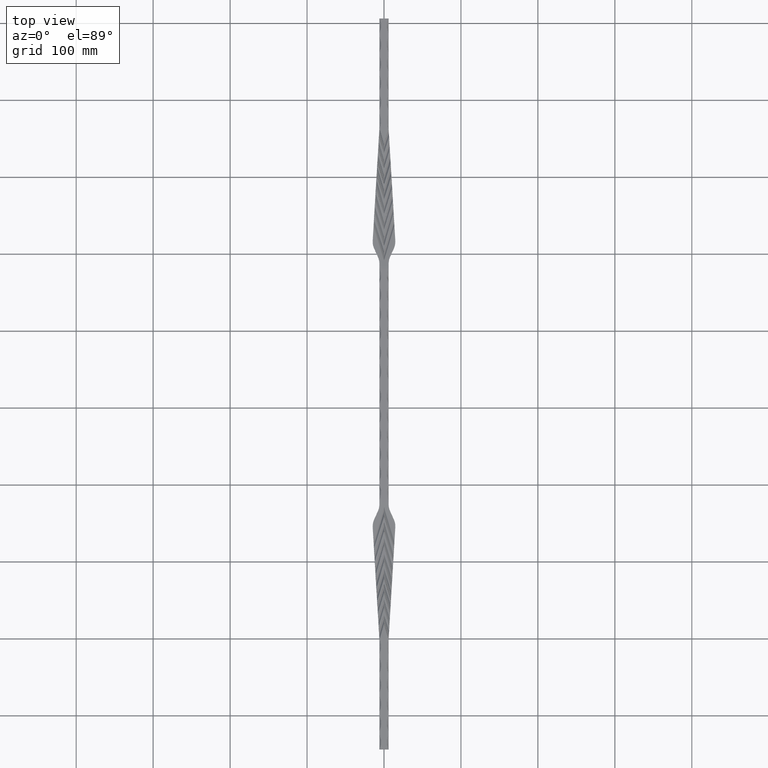
[diagram: clean part render]
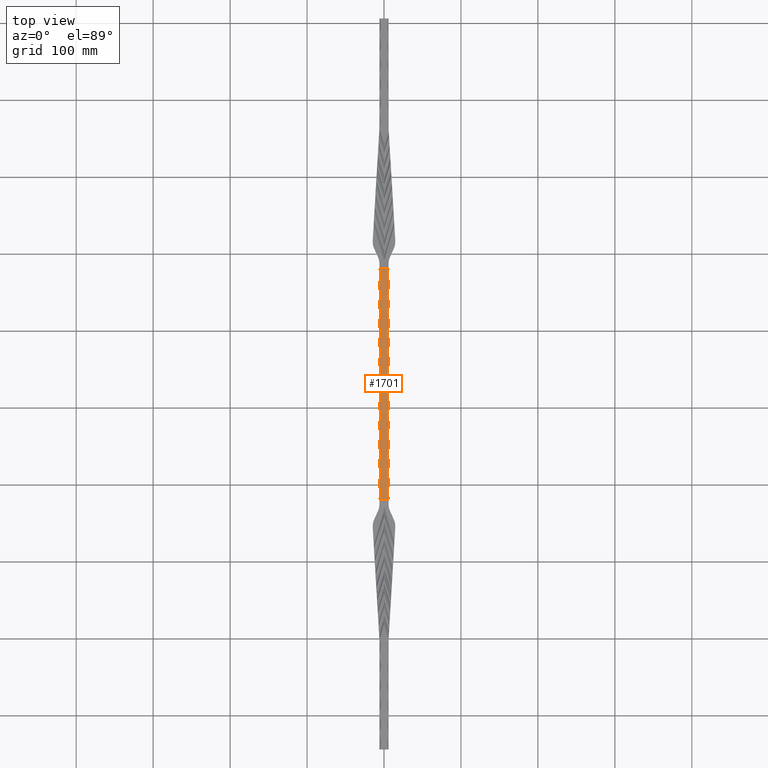
[diagram: same view with one face highlighted and labeled with its STEP entity id]
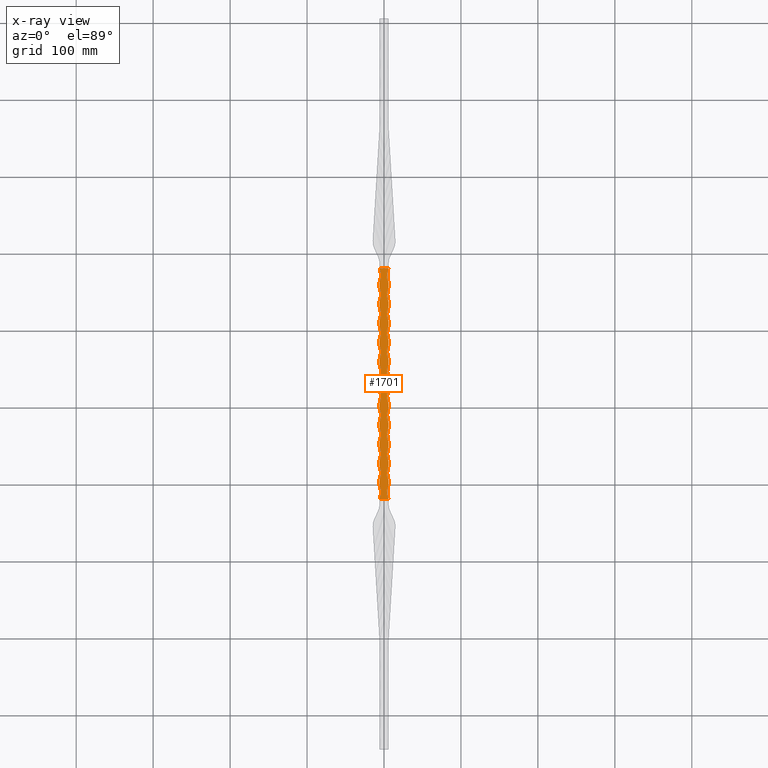
[diagram: x-ray of the same camera — body ghosted, the highlighted face saturated]
A machine part, top view. The second image highlights one B-rep face of the part: STEP entity #1701.
The next image is the same camera in x-ray: the body ghosted, the highlighted face saturated — about 0% of this face is hidden behind the body in this view.
In plain terms, the highlighted planar face has unit normal (0, 0, -1).
Its self-contained STEP definition (entity closure, byte-faithful):
#127 = AXIS2_PLACEMENT_3D ( 'NONE', #11779, #34590, #17482 ) ;
#283 = VECTOR ( 'NONE', #11474, 1000.000000000000000 ) ;
#288 = ORIENTED_EDGE ( 'NONE', *, *, #9248, .T. ) ;
#314 = CARTESIAN_POINT ( 'NONE',  ( -5.999999999999998224, 531.0399999999999636, 5.999999999999999112 ) ) ;
#405 = CIRCLE ( 'NONE', #16123, 26.00000000000000711 ) ;
#857 = EDGE_CURVE ( 'NONE', #15243, #13305, #6141, .T. ) ;
#914 = VERTEX_POINT ( 'NONE', #27845 ) ;
#1011 = AXIS2_PLACEMENT_3D ( 'NONE', #22577, #5639, #28446 ) ;
#1042 = EDGE_CURVE ( 'NONE', #34451, #2035, #17307, .T. ) ;
#1101 = CARTESIAN_POINT ( 'NONE',  ( -30.00000000000001066, 597.0799999999998136, 5.999999999999075406 ) ) ;
#1343 = VERTEX_POINT ( 'NONE', #11095 ) ;
#1373 = EDGE_CURVE ( 'NONE', #17051, #32781, #28448, .T. ) ;
#1446 = VECTOR ( 'NONE', #27926, 1000.000000000000000 ) ;
#1519 = CARTESIAN_POINT ( 'NONE',  ( -6.000000000000001776, 505.0000000000000000, 5.999999999998961719 ) ) ;
#1629 = CARTESIAN_POINT ( 'NONE',  ( 6.000000000000001776, 430.0000000000000568, 6.000000000000012434 ) ) ;
#1644 = CARTESIAN_POINT ( 'NONE',  ( 30.00000000000001066, 672.0799999999999272, 5.999999999999993783 ) ) ;
#1701 = ADVANCED_FACE ( 'NONE', ( #28414 ), #16379, .F. ) ;
#1756 = CARTESIAN_POINT ( 'NONE',  ( 6.000000000000001776, 531.0399999999999636, 5.999999999999999112 ) ) ;
#1794 = CIRCLE ( 'NONE', #17887, 26.00000000000000711 ) ;
#1898 = CARTESIAN_POINT ( 'NONE',  ( 6.000000000000001776, 400.0000000000000000, 5.999999999999984901 ) ) ;
#2035 = VERTEX_POINT ( 'NONE', #26339 ) ;
#2171 = DIRECTION ( 'NONE',  ( -1.000000000000000000, 0.000000000000000000, -0.000000000000000000 ) ) ;
#2593 = DIRECTION ( 'NONE',  ( -0.000000000000000000, -1.000000000000000000, -0.000000000000000000 ) ) ;
#2744 = EDGE_CURVE ( 'NONE', #13934, #16822, #5631, .T. ) ;
#3143 = EDGE_CURVE ( 'NONE', #35236, #26638, #32355, .T. ) ;
#3144 = ORIENTED_EDGE ( 'NONE', *, *, #21599, .F. ) ;
#3322 = EDGE_CURVE ( 'NONE', #20268, #15836, #31462, .T. ) ;
#3446 = CARTESIAN_POINT ( 'NONE',  ( 6.000000000000001776, 582.0799999999999272, 6.000000000000012434 ) ) ;
#3487 = VERTEX_POINT ( 'NONE', #4921 ) ;
#3631 = EDGE_CURVE ( 'NONE', #1343, #36102, #21590, .T. ) ;
#3835 = CARTESIAN_POINT ( 'NONE',  ( -6.000000000000001776, 405.0000000000000000, 5.999999999999170441 ) ) ;
#3921 = CARTESIAN_POINT ( 'NONE',  ( 30.00000000000001066, 572.0799999999999272, 5.999999999999988454 ) ) ;
#4384 = LINE ( 'NONE', #12487, #32024 ) ;
#4407 = CIRCLE ( 'NONE', #32277, 26.00000000000000711 ) ;
#4445 = EDGE_CURVE ( 'NONE', #32589, #14305, #6398, .T. ) ;
#4447 = CARTESIAN_POINT ( 'NONE',  ( 6.000000000000001776, 537.0799999999999272, 5.999999999999977796 ) ) ;
#4486 = DIRECTION ( 'NONE',  ( -0.000000000000000000, -0.000000000000000000, 1.000000000000000000 ) ) ;
#4552 = CARTESIAN_POINT ( 'NONE',  ( -6.000000000000001776, 525.0000000000025011, 6.000000000000012434 ) ) ;
#4588 = DIRECTION ( 'NONE',  ( -0.000000000000000000, -1.000000000000000000, -0.000000000000000000 ) ) ;
#4703 = EDGE_CURVE ( 'NONE', #11209, #914, #9049, .T. ) ;
#4817 = EDGE_CURVE ( 'NONE', #14189, #20515, #6820, .T. ) ;
#4829 = CARTESIAN_POINT ( 'NONE',  ( 6.000000000000001776, 531.0399999999999636, 5.999999999999999112 ) ) ;
#4867 = EDGE_CURVE ( 'NONE', #35474, #26964, #20222, .T. ) ;
#4921 = CARTESIAN_POINT ( 'NONE',  ( 5.593232469096428794, 681.0415678702127025, 5.999999999999993783 ) ) ;
#5055 = AXIS2_PLACEMENT_3D ( 'NONE', #10040, #24225, #24590 ) ;
#5106 = EDGE_CURVE ( 'NONE', #16822, #1343, #12184, .T. ) ;
#5148 = DIRECTION ( 'NONE',  ( -1.000000000000000000, 4.270088556250601108E-15, 0.000000000000000000 ) ) ;
#5311 = EDGE_CURVE ( 'NONE', #30675, #10342, #22426, .T. ) ;
#5359 = VERTEX_POINT ( 'NONE', #1519 ) ;
#5502 = DIRECTION ( 'NONE',  ( -1.000000000000000000, 0.000000000000000000, 0.000000000000000000 ) ) ;
#5631 = CIRCLE ( 'NONE', #28639, 26.00000000000000711 ) ;
#5639 = DIRECTION ( 'NONE',  ( -0.000000000000000000, -0.000000000000000000, 1.000000000000000000 ) ) ;
#5875 = ORIENTED_EDGE ( 'NONE', *, *, #11516, .T. ) ;
#5912 = LINE ( 'NONE', #6589, #35369 ) ;
#6101 = CARTESIAN_POINT ( 'NONE',  ( 6.000000000000001776, 531.0399999999999636, 5.999999999999999112 ) ) ;
#6141 = CIRCLE ( 'NONE', #12384, 26.00000000000000711 ) ;
#6150 = EDGE_CURVE ( 'NONE', #33956, #3487, #5912, .T. ) ;
#6333 = CARTESIAN_POINT ( 'NONE',  ( -6.000000000000001776, 582.0799999999999272, 5.999999999999014122 ) ) ;
#6367 = ORIENTED_EDGE ( 'NONE', *, *, #3322, .F. ) ;
#6398 = CIRCLE ( 'NONE', #30886, 26.00000000000000711 ) ;
#6417 = DIRECTION ( 'NONE',  ( -1.000000000000000000, 0.000000000000000000, 0.000000000000000000 ) ) ;
#6496 = LINE ( 'NONE', #27072, #35506 ) ;
#6554 = VECTOR ( 'NONE', #12156, 1000.000000000000000 ) ;
#6589 = CARTESIAN_POINT ( 'NONE',  ( -5.999999999999998224, 681.0415678702127025, 6.000000000000002665 ) ) ;
#6637 = CARTESIAN_POINT ( 'NONE',  ( 30.00000000000001066, 622.0799999999998136, 5.999999999999991118 ) ) ;
#6684 = DIRECTION ( 'NONE',  ( -0.000000000000000000, 1.000000000000000000, -0.000000000000000000 ) ) ;
#6798 = CARTESIAN_POINT ( 'NONE',  ( -6.000000000000001776, 557.0799999999999272, 5.999999999998961719 ) ) ;
#6820 = LINE ( 'NONE', #16213, #31810 ) ;
#6847 = DIRECTION ( 'NONE',  ( -1.000000000000000000, 0.000000000000000000, 0.000000000000000000 ) ) ;
#7088 = DIRECTION ( 'NONE',  ( -1.000000000000000000, 0.000000000000000000, 0.000000000000000000 ) ) ;
#7155 = LINE ( 'NONE', #30020, #21002 ) ;
#7374 = DIRECTION ( 'NONE',  ( -1.000000000000000000, -4.270088556250601108E-15, 0.000000000000000000 ) ) ;
#7448 = EDGE_CURVE ( 'NONE', #12773, #30675, #9429, .T. ) ;
#7522 = ORIENTED_EDGE ( 'NONE', *, *, #9205, .F. ) ;
#7545 = DIRECTION ( 'NONE',  ( -1.000000000000000000, -8.540177112501202215E-15, 0.000000000000000000 ) ) ;
#7681 = CARTESIAN_POINT ( 'NONE',  ( -6.000000000000001776, 607.0799999999998136, 5.999999999999065636 ) ) ;
#7707 = ORIENTED_EDGE ( 'NONE', *, *, #4867, .F. ) ;
#7803 = CARTESIAN_POINT ( 'NONE',  ( 6.000000000000001776, 531.0399999999999636, 5.999999999999999112 ) ) ;
#7860 = CARTESIAN_POINT ( 'NONE',  ( 30.00000000000001066, 440.0000000000000568, 5.999999999999991118 ) ) ;
#7894 = DIRECTION ( 'NONE',  ( -0.000000000000000000, -0.000000000000000000, 1.000000000000000000 ) ) ;
#8008 = AXIS2_PLACEMENT_3D ( 'NONE', #33252, #16152, #24772 ) ;
#8249 = AXIS2_PLACEMENT_3D ( 'NONE', #1101, #21180, #6847 ) ;
#8318 = EDGE_CURVE ( 'NONE', #35236, #13934, #9392, .T. ) ;
#8506 = VECTOR ( 'NONE', #19895, 1000.000000000000000 ) ;
#8517 = CARTESIAN_POINT ( 'NONE',  ( -6.000000000000001776, 657.0799999999999272, 5.999999999999170441 ) ) ;
#8622 = CARTESIAN_POINT ( 'NONE',  ( 6.000000000000001776, 531.0399999999999636, 5.999999999999999112 ) ) ;
#8683 = VECTOR ( 'NONE', #6684, 1000.000000000000000 ) ;
#8697 = ORIENTED_EDGE ( 'NONE', *, *, #17740, .T. ) ;
#8954 = DIRECTION ( 'NONE',  ( -0.000000000000000000, -1.000000000000000000, -0.000000000000000000 ) ) ;
#8970 = EDGE_CURVE ( 'NONE', #26638, #12773, #35216, .T. ) ;
#8982 = CARTESIAN_POINT ( 'NONE',  ( -5.999999999999998224, 531.0399999999999636, 5.999999999999999112 ) ) ;
#9049 = LINE ( 'NONE', #32951, #15306 ) ;
#9080 = CIRCLE ( 'NONE', #8008, 26.00000000000000711 ) ;
#9168 = DIRECTION ( 'NONE',  ( -0.000000000000000000, -0.000000000000000000, 1.000000000000000000 ) ) ;
#9174 = EDGE_CURVE ( 'NONE', #35474, #17051, #22856, .T. ) ;
#9201 = EDGE_CURVE ( 'NONE', #20268, #26964, #405, .T. ) ;
#9205 = EDGE_CURVE ( 'NONE', #13336, #19629, #4384, .T. ) ;
#9208 = EDGE_CURVE ( 'NONE', #16989, #23209, #21656, .T. ) ;
#9248 = EDGE_CURVE ( 'NONE', #11654, #23656, #31919, .T. ) ;
#9323 = ORIENTED_EDGE ( 'NONE', *, *, #4817, .T. ) ;
#9371 = CARTESIAN_POINT ( 'NONE',  ( 30.00000000000001066, 547.0799999999999272, 5.999999999999986677 ) ) ;
#9392 = LINE ( 'NONE', #7803, #12509 ) ;
#9414 = VERTEX_POINT ( 'NONE', #19549 ) ;
#9429 = CIRCLE ( 'NONE', #28830, 26.00000000000000711 ) ;
#9495 = DIRECTION ( 'NONE',  ( -0.000000000000000000, -1.000000000000000000, -0.000000000000000000 ) ) ;
#9584 = ORIENTED_EDGE ( 'NONE', *, *, #20324, .F. ) ;
#9612 = DIRECTION ( 'NONE',  ( 1.000000000000000000, 0.000000000000000000, 0.000000000000000000 ) ) ;
#9633 = CARTESIAN_POINT ( 'NONE',  ( -30.00000000000001066, 572.0799999999999272, 5.999999999999023892 ) ) ;
#9642 = CIRCLE ( 'NONE', #18678, 26.00000000000000711 ) ;
#9657 = ORIENTED_EDGE ( 'NONE', *, *, #8318, .F. ) ;
#9833 = DIRECTION ( 'NONE',  ( -0.000000000000000000, 1.000000000000000000, -0.000000000000000000 ) ) ;
#9853 = CARTESIAN_POINT ( 'NONE',  ( 6.000000000000001776, 450.0000000000000568, 5.999999999999982236 ) ) ;
#10040 = CARTESIAN_POINT ( 'NONE',  ( 30.00000000000001066, 490.0000000000000568, 5.999999999999988454 ) ) ;
#10342 = VERTEX_POINT ( 'NONE', #15871 ) ;
#10370 = ORIENTED_EDGE ( 'NONE', *, *, #30492, .F. ) ;
#10384 = CARTESIAN_POINT ( 'NONE',  ( -6.000000000000001776, 480.0000000000000568, 5.999999999999014122 ) ) ;
#10408 = VERTEX_POINT ( 'NONE', #10384 ) ;
#10836 = VECTOR ( 'NONE', #4588, 1000.000000000000000 ) ;
#10894 = ORIENTED_EDGE ( 'NONE', *, *, #11794, .T. ) ;
#11056 = CARTESIAN_POINT ( 'NONE',  ( -6.000000000000001776, 632.0799999999998136, 5.999999999999118039 ) ) ;
#11084 = EDGE_CURVE ( 'NONE', #10408, #14305, #27236, .T. ) ;
#11095 = CARTESIAN_POINT ( 'NONE',  ( 6.000000000000001776, 500.0000000000000000, 5.999999999999979572 ) ) ;
#11209 = VERTEX_POINT ( 'NONE', #3835 ) ;
#11245 = CARTESIAN_POINT ( 'NONE',  ( -5.593232469096428794, 381.0384321297871679, 5.999999999999231726 ) ) ;
#11247 = CARTESIAN_POINT ( 'NONE',  ( 6.000000000000001776, 607.0799999999998136, 6.000000000000012434 ) ) ;
#11474 = DIRECTION ( 'NONE',  ( -0.000000000000000000, -1.000000000000000000, -0.000000000000000000 ) ) ;
#11484 = LINE ( 'NONE', #34443, #25724 ) ;
#11504 = CARTESIAN_POINT ( 'NONE',  ( 6.000000000000001776, 475.0000000000000568, 5.999999999999980460 ) ) ;
#11516 = EDGE_CURVE ( 'NONE', #32055, #14189, #1794, .T. ) ;
#11654 = VERTEX_POINT ( 'NONE', #11056 ) ;
#11680 = AXIS2_PLACEMENT_3D ( 'NONE', #30727, #13646, #2171 ) ;
#11685 = CARTESIAN_POINT ( 'NONE',  ( -30.00000000000001066, 490.0000000000000568, 5.999999999999023892 ) ) ;
#11752 = CARTESIAN_POINT ( 'NONE',  ( -6.000000000000001776, 537.0799999999974261, 6.000000000000012434 ) ) ;
#11779 = CARTESIAN_POINT ( 'NONE',  ( -30.00000000000001066, 515.0000000000000000, 5.999999999998971489 ) ) ;
#11794 = EDGE_CURVE ( 'NONE', #14758, #12737, #15613, .T. ) ;
#11921 = DIRECTION ( 'NONE',  ( 0.000000000000000000, 0.000000000000000000, -1.000000000000000000 ) ) ;
#12001 = DIRECTION ( 'NONE',  ( -0.000000000000000000, -1.000000000000000000, -0.000000000000000000 ) ) ;
#12006 = DIRECTION ( 'NONE',  ( -0.000000000000000000, 1.000000000000000000, -0.000000000000000000 ) ) ;
#12156 = DIRECTION ( 'NONE',  ( -0.000000000000000000, -1.000000000000000000, -0.000000000000000000 ) ) ;
#12161 = ORIENTED_EDGE ( 'NONE', *, *, #9201, .T. ) ;
#12184 = LINE ( 'NONE', #16821, #14362 ) ;
#12198 = VECTOR ( 'NONE', #12001, 1000.000000000000000 ) ;
#12375 = DIRECTION ( 'NONE',  ( -1.000000000000000000, 4.270088556250601108E-15, 0.000000000000000000 ) ) ;
#12384 = AXIS2_PLACEMENT_3D ( 'NONE', #36704, #7894, #5148 ) ;
#12428 = ORIENTED_EDGE ( 'NONE', *, *, #15491, .T. ) ;
#12476 = ORIENTED_EDGE ( 'NONE', *, *, #34709, .F. ) ;
#12487 = CARTESIAN_POINT ( 'NONE',  ( -5.999999999999998224, 531.0399999999999636, 5.999999999999999112 ) ) ;
#12509 = VECTOR ( 'NONE', #19010, 1000.000000000000000 ) ;
#12588 = DIRECTION ( 'NONE',  ( -0.000000000000000000, 1.000000000000000000, -0.000000000000000000 ) ) ;
#12618 = ORIENTED_EDGE ( 'NONE', *, *, #4445, .F. ) ;
#12737 = VERTEX_POINT ( 'NONE', #35152 ) ;
#12773 = VERTEX_POINT ( 'NONE', #15788 ) ;
#12847 = VECTOR ( 'NONE', #12006, 1000.000000000000000 ) ;
#12875 = DIRECTION ( 'NONE',  ( -0.000000000000000000, 1.000000000000000000, -0.000000000000000000 ) ) ;
#12983 = DIRECTION ( 'NONE',  ( 0.000000000000000000, 0.000000000000000000, -1.000000000000000000 ) ) ;
#13134 = CARTESIAN_POINT ( 'NONE',  ( 30.00000000000001066, 597.0799999999998136, 5.999999999999989342 ) ) ;
#13150 = ORIENTED_EDGE ( 'NONE', *, *, #32161, .T. ) ;
#13305 = VERTEX_POINT ( 'NONE', #28588 ) ;
#13336 = VERTEX_POINT ( 'NONE', #8517 ) ;
#13604 = CARTESIAN_POINT ( 'NONE',  ( 6.000000000000001776, 505.0000000000000000, 6.000000000000012434 ) ) ;
#13646 = DIRECTION ( 'NONE',  ( 0.000000000000000000, 0.000000000000000000, -1.000000000000000000 ) ) ;
#13930 = CIRCLE ( 'NONE', #127, 26.00000000000000711 ) ;
#13934 = VERTEX_POINT ( 'NONE', #20814 ) ;
#13937 = LINE ( 'NONE', #8982, #12198 ) ;
#14189 = VERTEX_POINT ( 'NONE', #17401 ) ;
#14257 = AXIS2_PLACEMENT_3D ( 'NONE', #16942, #28048, #19812 ) ;
#14298 = CARTESIAN_POINT ( 'NONE',  ( -6.000000000000001776, 455.0000000000000000, 5.999999999999065636 ) ) ;
#14305 = VERTEX_POINT ( 'NONE', #18024 ) ;
#14362 = VECTOR ( 'NONE', #2593, 1000.000000000000000 ) ;
#14478 = ORIENTED_EDGE ( 'NONE', *, *, #17723, .T. ) ;
#14522 = DIRECTION ( 'NONE',  ( -1.000000000000000000, -4.270088556250601108E-15, 0.000000000000000000 ) ) ;
#14608 = VERTEX_POINT ( 'NONE', #1629 ) ;
#14753 = ORIENTED_EDGE ( 'NONE', *, *, #5311, .T. ) ;
#14758 = VERTEX_POINT ( 'NONE', #11245 ) ;
#14878 = CARTESIAN_POINT ( 'NONE',  ( -6.000000000000001776, 562.0799999999974261, 6.000000000000012434 ) ) ;
#15243 = VERTEX_POINT ( 'NONE', #20155 ) ;
#15293 = CARTESIAN_POINT ( 'NONE',  ( -5.999999999999998224, 531.0399999999999636, 5.999999999999999112 ) ) ;
#15306 = VECTOR ( 'NONE', #15612, 1000.000000000000000 ) ;
#15440 = EDGE_CURVE ( 'NONE', #19264, #12737, #9642, .T. ) ;
#15447 = EDGE_CURVE ( 'NONE', #16941, #32055, #6496, .T. ) ;
#15464 = DIRECTION ( 'NONE',  ( 0.000000000000000000, 0.000000000000000000, -1.000000000000000000 ) ) ;
#15491 = EDGE_CURVE ( 'NONE', #20515, #34451, #26995, .T. ) ;
#15612 = DIRECTION ( 'NONE',  ( -0.000000000000000000, -1.000000000000000000, -0.000000000000000000 ) ) ;
#15613 = LINE ( 'NONE', #31740, #8506 ) ;
#15721 = DIRECTION ( 'NONE',  ( -0.000000000000000000, -0.000000000000000000, 1.000000000000000000 ) ) ;
#15788 = CARTESIAN_POINT ( 'NONE',  ( 6.000000000000001776, 562.0799999999999272, 5.999999999999979572 ) ) ;
#15836 = VERTEX_POINT ( 'NONE', #21532 ) ;
#15871 = CARTESIAN_POINT ( 'NONE',  ( 6.000000000000001776, 587.0799999999998136, 5.999999999999980460 ) ) ;
#15883 = CIRCLE ( 'NONE', #1011, 26.00000000000000711 ) ;
#15927 = ORIENTED_EDGE ( 'NONE', *, *, #23981, .F. ) ;
#15964 = CARTESIAN_POINT ( 'NONE',  ( 6.000000000000001776, 480.0000000000000000, 6.000000000000012434 ) ) ;
#16063 = CARTESIAN_POINT ( 'NONE',  ( -6.000000000000001776, 662.0799999999979946, 6.000000000000012434 ) ) ;
#16123 = AXIS2_PLACEMENT_3D ( 'NONE', #9633, #15464, #12375 ) ;
#16152 = DIRECTION ( 'NONE',  ( -0.000000000000000000, -0.000000000000000000, 1.000000000000000000 ) ) ;
#16196 = CARTESIAN_POINT ( 'NONE',  ( 6.000000000000001776, 612.0799999999998136, 5.999999999999982236 ) ) ;
#16213 = CARTESIAN_POINT ( 'NONE',  ( 6.000000000000001776, 531.0399999999999636, 5.999999999999999112 ) ) ;
#16379 = PLANE ( 'NONE',  #11680 ) ;
#16598 = CARTESIAN_POINT ( 'NONE',  ( -6.000000000000001776, 500.0000000000024443, 6.000000000000012434 ) ) ;
#16715 = CARTESIAN_POINT ( 'NONE',  ( 30.00000000000001066, 515.0000000000000000, 5.999999999999986677 ) ) ;
#16740 = LINE ( 'NONE', #33514, #21201 ) ;
#16821 = CARTESIAN_POINT ( 'NONE',  ( 6.000000000000001776, 531.0399999999999636, 5.999999999999999112 ) ) ;
#16822 = VERTEX_POINT ( 'NONE', #13604 ) ;
#16854 = AXIS2_PLACEMENT_3D ( 'NONE', #32666, #32433, #7088 ) ;
#16941 = VERTEX_POINT ( 'NONE', #11247 ) ;
#16942 = CARTESIAN_POINT ( 'NONE',  ( -30.00000000000001066, 415.0000000000000568, 5.999999999999179323 ) ) ;
#16989 = VERTEX_POINT ( 'NONE', #11504 ) ;
#17051 = VERTEX_POINT ( 'NONE', #11752 ) ;
#17182 = AXIS2_PLACEMENT_3D ( 'NONE', #11685, #34363, #14522 ) ;
#17188 = EDGE_CURVE ( 'NONE', #14608, #9414, #34494, .T. ) ;
#17238 = DIRECTION ( 'NONE',  ( -0.000000000000000000, 1.000000000000000000, -0.000000000000000000 ) ) ;
#17307 = LINE ( 'NONE', #18095, #12847 ) ;
#17401 = CARTESIAN_POINT ( 'NONE',  ( 6.000000000000001776, 632.0799999999998136, 6.000000000000012434 ) ) ;
#17407 = VERTEX_POINT ( 'NONE', #29013 ) ;
#17447 = ORIENTED_EDGE ( 'NONE', *, *, #9208, .F. ) ;
#17448 = CARTESIAN_POINT ( 'NONE',  ( 30.00000000000001066, 647.0799999999999272, 5.999999999999992006 ) ) ;
#17482 = DIRECTION ( 'NONE',  ( -1.000000000000000000, -4.270088556250601108E-15, 0.000000000000000000 ) ) ;
#17723 = EDGE_CURVE ( 'NONE', #2035, #3487, #23728, .T. ) ;
#17740 = EDGE_CURVE ( 'NONE', #10342, #16941, #21505, .T. ) ;
#17804 = VERTEX_POINT ( 'NONE', #16598 ) ;
#17887 = AXIS2_PLACEMENT_3D ( 'NONE', #6637, #11921, #34716 ) ;
#17930 = LINE ( 'NONE', #32763, #34444 ) ;
#18024 = CARTESIAN_POINT ( 'NONE',  ( -6.000000000000001776, 475.0000000000022737, 6.000000000000012434 ) ) ;
#18037 = EDGE_CURVE ( 'NONE', #13336, #17407, #22400, .T. ) ;
#18095 = CARTESIAN_POINT ( 'NONE',  ( 6.000000000000001776, 531.0399999999999636, 5.999999999999999112 ) ) ;
#18266 = EDGE_CURVE ( 'NONE', #36102, #16989, #27296, .T. ) ;
#18391 = ORIENTED_EDGE ( 'NONE', *, *, #1042, .T. ) ;
#18602 = LINE ( 'NONE', #8622, #23499 ) ;
#18678 = AXIS2_PLACEMENT_3D ( 'NONE', #32827, #15721, #31793 ) ;
#18686 = DIRECTION ( 'NONE',  ( -1.000000000000000000, 0.000000000000000000, 0.000000000000000000 ) ) ;
#18846 = DIRECTION ( 'NONE',  ( 0.000000000000000000, 0.000000000000000000, -1.000000000000000000 ) ) ;
#18975 = VERTEX_POINT ( 'NONE', #29128 ) ;
#19010 = DIRECTION ( 'NONE',  ( -0.000000000000000000, -1.000000000000000000, -0.000000000000000000 ) ) ;
#19043 = CARTESIAN_POINT ( 'NONE',  ( -30.00000000000001066, 622.0799999999998136, 5.999999999999127809 ) ) ;
#19159 = AXIS2_PLACEMENT_3D ( 'NONE', #17448, #28443, #28689 ) ;
#19230 = ORIENTED_EDGE ( 'NONE', *, *, #28436, .F. ) ;
#19264 = VERTEX_POINT ( 'NONE', #1898 ) ;
#19368 = CARTESIAN_POINT ( 'NONE',  ( -30.00000000000001066, 672.0799999999999272, 5.999999999999231726 ) ) ;
#19549 = CARTESIAN_POINT ( 'NONE',  ( 6.000000000000001776, 425.0000000000000568, 5.999999999999983125 ) ) ;
#19629 = VERTEX_POINT ( 'NONE', #16063 ) ;
#19812 = DIRECTION ( 'NONE',  ( -1.000000000000000000, -2.135044278125300554E-15, 0.000000000000000000 ) ) ;
#19895 = DIRECTION ( 'NONE',  ( 1.000000000000000000, -0.000000000000000000, 0.000000000000000000 ) ) ;
#20123 = EDGE_CURVE ( 'NONE', #11209, #18975, #29990, .T. ) ;
#20153 = VECTOR ( 'NONE', #8954, 1000.000000000000000 ) ;
#20155 = CARTESIAN_POINT ( 'NONE',  ( -6.000000000000001776, 430.0000000000000568, 5.999999999999118039 ) ) ;
#20222 = LINE ( 'NONE', #27672, #1446 ) ;
#20268 = VERTEX_POINT ( 'NONE', #6333 ) ;
#20276 = ORIENTED_EDGE ( 'NONE', *, *, #2744, .F. ) ;
#20324 = EDGE_CURVE ( 'NONE', #11654, #17407, #17930, .T. ) ;
#20515 = VERTEX_POINT ( 'NONE', #31121 ) ;
#20563 = EDGE_CURVE ( 'NONE', #10408, #17804, #36226, .T. ) ;
#20708 = ORIENTED_EDGE ( 'NONE', *, *, #4703, .T. ) ;
#20814 = CARTESIAN_POINT ( 'NONE',  ( 6.000000000000001776, 525.0000000000000000, 5.999999999999977796 ) ) ;
#20938 = DIRECTION ( 'NONE',  ( -1.000000000000000000, 4.270088556250601108E-15, 0.000000000000000000 ) ) ;
#21002 = VECTOR ( 'NONE', #12588, 1000.000000000000000 ) ;
#21105 = ORIENTED_EDGE ( 'NONE', *, *, #28768, .T. ) ;
#21180 = DIRECTION ( 'NONE',  ( 0.000000000000000000, 0.000000000000000000, -1.000000000000000000 ) ) ;
#21197 = ORIENTED_EDGE ( 'NONE', *, *, #18266, .F. ) ;
#21201 = VECTOR ( 'NONE', #25383, 1000.000000000000000 ) ;
#21223 = EDGE_LOOP ( 'NONE', ( #19230, #10894, #30662, #15927, #10370, #27677, #12476, #22163, #17447, #21197, #22820, #35507, #20276, #9657, #22000, #36645, #21288, #14753, #8697, #28586, #5875, #9323, #12428, #18391, #14478, #30440, #29790, #7522, #30168, #9584, #288, #3144, #34192, #6367, #12161, #7707, #35676, #24056, #29290, #21105, #23807, #33564, #12618, #33986, #34388, #13150, #36948, #20708 ) ) ;
#21280 = CARTESIAN_POINT ( 'NONE',  ( 6.000000000000001776, 455.0000000000000000, 6.000000000000012434 ) ) ;
#21288 = ORIENTED_EDGE ( 'NONE', *, *, #7448, .T. ) ;
#21505 = CIRCLE ( 'NONE', #23065, 26.00000000000000711 ) ;
#21532 = CARTESIAN_POINT ( 'NONE',  ( -6.000000000000001776, 587.0799999999976535, 6.000000000000012434 ) ) ;
#21590 = CIRCLE ( 'NONE', #5055, 26.00000000000000711 ) ;
#21599 = EDGE_CURVE ( 'NONE', #30507, #23656, #7155, .T. ) ;
#21656 = CIRCLE ( 'NONE', #16854, 26.00000000000000711 ) ;
#21790 = DIRECTION ( 'NONE',  ( 0.000000000000000000, 0.000000000000000000, -1.000000000000000000 ) ) ;
#22000 = ORIENTED_EDGE ( 'NONE', *, *, #3143, .T. ) ;
#22098 = CARTESIAN_POINT ( 'NONE',  ( 6.000000000000001776, 657.0799999999999272, 6.000000000000012434 ) ) ;
#22163 = ORIENTED_EDGE ( 'NONE', *, *, #24207, .F. ) ;
#22267 = CARTESIAN_POINT ( 'NONE',  ( -5.593232469096428794, 681.0415678702127025, 5.999999999999231726 ) ) ;
#22315 = DIRECTION ( 'NONE',  ( -0.000000000000000000, -0.000000000000000000, 1.000000000000000000 ) ) ;
#22400 = CIRCLE ( 'NONE', #26877, 26.00000000000000711 ) ;
#22426 = LINE ( 'NONE', #1756, #22849 ) ;
#22577 = CARTESIAN_POINT ( 'NONE',  ( -30.00000000000001066, 390.0000000000000000, 5.999999999999231726 ) ) ;
#22820 = ORIENTED_EDGE ( 'NONE', *, *, #3631, .F. ) ;
#22849 = VECTOR ( 'NONE', #24215, 1000.000000000000000 ) ;
#22856 = CIRCLE ( 'NONE', #32641, 26.00000000000000711 ) ;
#23065 = AXIS2_PLACEMENT_3D ( 'NONE', #13134, #18846, #33206 ) ;
#23209 = VERTEX_POINT ( 'NONE', #21280 ) ;
#23251 = CIRCLE ( 'NONE', #33412, 26.00000000000000711 ) ;
#23478 = CARTESIAN_POINT ( 'NONE',  ( -30.00000000000001066, 465.0000000000000000, 5.999999999999075406 ) ) ;
#23499 = VECTOR ( 'NONE', #31204, 1000.000000000000000 ) ;
#23656 = VERTEX_POINT ( 'NONE', #29747 ) ;
#23728 = CIRCLE ( 'NONE', #36465, 26.00000000000000711 ) ;
#23807 = ORIENTED_EDGE ( 'NONE', *, *, #20563, .F. ) ;
#23981 = EDGE_CURVE ( 'NONE', #32656, #19264, #31107, .T. ) ;
#24056 = ORIENTED_EDGE ( 'NONE', *, *, #1373, .T. ) ;
#24207 = EDGE_CURVE ( 'NONE', #23209, #33769, #18602, .T. ) ;
#24215 = DIRECTION ( 'NONE',  ( -0.000000000000000000, 1.000000000000000000, -0.000000000000000000 ) ) ;
#24225 = DIRECTION ( 'NONE',  ( -0.000000000000000000, -0.000000000000000000, 1.000000000000000000 ) ) ;
#24326 = EDGE_CURVE ( 'NONE', #32589, #13305, #11484, .T. ) ;
#24590 = DIRECTION ( 'NONE',  ( -1.000000000000000000, 0.000000000000000000, 0.000000000000000000 ) ) ;
#24689 = CARTESIAN_POINT ( 'NONE',  ( -30.00000000000001066, 647.0799999999999272, 5.999999999999179323 ) ) ;
#24772 = DIRECTION ( 'NONE',  ( -1.000000000000000000, 0.000000000000000000, 0.000000000000000000 ) ) ;
#25383 = DIRECTION ( 'NONE',  ( -0.000000000000000000, -1.000000000000000000, -0.000000000000000000 ) ) ;
#25724 = VECTOR ( 'NONE', #9495, 1000.000000000000000 ) ;
#25893 = CARTESIAN_POINT ( 'NONE',  ( -5.999999999999998224, 531.0399999999999636, 5.999999999999999112 ) ) ;
#26185 = AXIS2_PLACEMENT_3D ( 'NONE', #19043, #21790, #30039 ) ;
#26339 = CARTESIAN_POINT ( 'NONE',  ( 6.000000000000001776, 662.0799999999999272, 5.999999999999984901 ) ) ;
#26638 = VERTEX_POINT ( 'NONE', #27605 ) ;
#26877 = AXIS2_PLACEMENT_3D ( 'NONE', #24689, #12983, #7374 ) ;
#26964 = VERTEX_POINT ( 'NONE', #14878 ) ;
#26995 = CIRCLE ( 'NONE', #19159, 26.00000000000000711 ) ;
#27000 = DIRECTION ( 'NONE',  ( -0.000000000000000000, -1.000000000000000000, -0.000000000000000000 ) ) ;
#27072 = CARTESIAN_POINT ( 'NONE',  ( 6.000000000000001776, 531.0399999999999636, 5.999999999999999112 ) ) ;
#27236 = LINE ( 'NONE', #15293, #33040 ) ;
#27296 = LINE ( 'NONE', #6101, #20153 ) ;
#27505 = AXIS2_PLACEMENT_3D ( 'NONE', #9371, #29321, #32437 ) ;
#27605 = CARTESIAN_POINT ( 'NONE',  ( 6.000000000000001776, 557.0799999999999272, 6.000000000000012434 ) ) ;
#27613 = VECTOR ( 'NONE', #27709, 1000.000000000000000 ) ;
#27672 = CARTESIAN_POINT ( 'NONE',  ( -5.999999999999998224, 531.0399999999999636, 5.999999999999999112 ) ) ;
#27677 = ORIENTED_EDGE ( 'NONE', *, *, #17188, .F. ) ;
#27709 = DIRECTION ( 'NONE',  ( -0.000000000000000000, 1.000000000000000000, -0.000000000000000000 ) ) ;
#27845 = CARTESIAN_POINT ( 'NONE',  ( -6.000000000000001776, 400.0000000000018758, 6.000000000000012434 ) ) ;
#27926 = DIRECTION ( 'NONE',  ( -0.000000000000000000, 1.000000000000000000, -0.000000000000000000 ) ) ;
#28048 = DIRECTION ( 'NONE',  ( -0.000000000000000000, -0.000000000000000000, 1.000000000000000000 ) ) ;
#28414 = FACE_OUTER_BOUND ( 'NONE', #21223, .T. ) ;
#28436 = EDGE_CURVE ( 'NONE', #14758, #914, #15883, .T. ) ;
#28443 = DIRECTION ( 'NONE',  ( 0.000000000000000000, 0.000000000000000000, -1.000000000000000000 ) ) ;
#28446 = DIRECTION ( 'NONE',  ( -1.000000000000000000, 0.000000000000000000, 0.000000000000000000 ) ) ;
#28448 = LINE ( 'NONE', #25893, #283 ) ;
#28586 = ORIENTED_EDGE ( 'NONE', *, *, #15447, .T. ) ;
#28588 = CARTESIAN_POINT ( 'NONE',  ( -6.000000000000001776, 450.0000000000021600, 6.000000000000012434 ) ) ;
#28639 = AXIS2_PLACEMENT_3D ( 'NONE', #16715, #22315, #5502 ) ;
#28689 = DIRECTION ( 'NONE',  ( -1.000000000000000000, 0.000000000000000000, 0.000000000000000000 ) ) ;
#28768 = EDGE_CURVE ( 'NONE', #5359, #17804, #16740, .T. ) ;
#28830 = AXIS2_PLACEMENT_3D ( 'NONE', #3921, #29358, #29481 ) ;
#29013 = CARTESIAN_POINT ( 'NONE',  ( -6.000000000000001776, 637.0799999999978809, 6.000000000000012434 ) ) ;
#29128 = CARTESIAN_POINT ( 'NONE',  ( -6.000000000000001776, 425.0000000000019895, 6.000000000000012434 ) ) ;
#29228 = CARTESIAN_POINT ( 'NONE',  ( 6.000000000000001776, 531.0399999999999636, 5.999999999999999112 ) ) ;
#29290 = ORIENTED_EDGE ( 'NONE', *, *, #31060, .F. ) ;
#29321 = DIRECTION ( 'NONE',  ( 0.000000000000000000, 0.000000000000000000, -1.000000000000000000 ) ) ;
#29358 = DIRECTION ( 'NONE',  ( 0.000000000000000000, 0.000000000000000000, -1.000000000000000000 ) ) ;
#29402 = CARTESIAN_POINT ( 'NONE',  ( 6.000000000000001776, 405.0000000000000000, 6.000000000000012434 ) ) ;
#29481 = DIRECTION ( 'NONE',  ( -1.000000000000000000, 0.000000000000000000, 0.000000000000000000 ) ) ;
#29747 = CARTESIAN_POINT ( 'NONE',  ( -6.000000000000001776, 612.0799999999977672, 6.000000000000012434 ) ) ;
#29790 = ORIENTED_EDGE ( 'NONE', *, *, #32917, .T. ) ;
#29857 = EDGE_CURVE ( 'NONE', #30507, #15836, #31887, .T. ) ;
#29990 = CIRCLE ( 'NONE', #14257, 26.00000000000000711 ) ;
#30020 = CARTESIAN_POINT ( 'NONE',  ( -5.999999999999998224, 531.0399999999999636, 5.999999999999999112 ) ) ;
#30039 = DIRECTION ( 'NONE',  ( -1.000000000000000000, -4.270088556250601108E-15, 0.000000000000000000 ) ) ;
#30168 = ORIENTED_EDGE ( 'NONE', *, *, #18037, .T. ) ;
#30324 = DIRECTION ( 'NONE',  ( -1.000000000000000000, 0.000000000000000000, 0.000000000000000000 ) ) ;
#30440 = ORIENTED_EDGE ( 'NONE', *, *, #6150, .F. ) ;
#30492 = EDGE_CURVE ( 'NONE', #9414, #32656, #9080, .T. ) ;
#30507 = VERTEX_POINT ( 'NONE', #7681 ) ;
#30662 = ORIENTED_EDGE ( 'NONE', *, *, #15440, .F. ) ;
#30675 = VERTEX_POINT ( 'NONE', #3446 ) ;
#30727 = CARTESIAN_POINT ( 'NONE',  ( -5.999999999999998224, 200.0000000000000000, 6.000000000000002665 ) ) ;
#30886 = AXIS2_PLACEMENT_3D ( 'NONE', #23478, #9168, #6417 ) ;
#31060 = EDGE_CURVE ( 'NONE', #5359, #32781, #13930, .T. ) ;
#31107 = LINE ( 'NONE', #29228, #6554 ) ;
#31121 = CARTESIAN_POINT ( 'NONE',  ( 6.000000000000001776, 637.0799999999998136, 5.999999999999983125 ) ) ;
#31204 = DIRECTION ( 'NONE',  ( -0.000000000000000000, -1.000000000000000000, -0.000000000000000000 ) ) ;
#31462 = LINE ( 'NONE', #314, #8683 ) ;
#31740 = CARTESIAN_POINT ( 'NONE',  ( -5.999999999999998224, 381.0384321297871679, 6.000000000000002665 ) ) ;
#31793 = DIRECTION ( 'NONE',  ( -1.000000000000000000, 0.000000000000000000, 0.000000000000000000 ) ) ;
#31810 = VECTOR ( 'NONE', #17238, 1000.000000000000000 ) ;
#31887 = CIRCLE ( 'NONE', #8249, 26.00000000000000711 ) ;
#31919 = CIRCLE ( 'NONE', #26185, 26.00000000000000711 ) ;
#32024 = VECTOR ( 'NONE', #35070, 1000.000000000000000 ) ;
#32055 = VERTEX_POINT ( 'NONE', #16196 ) ;
#32161 = EDGE_CURVE ( 'NONE', #15243, #18975, #13937, .T. ) ;
#32277 = AXIS2_PLACEMENT_3D ( 'NONE', #7860, #4486, #18686 ) ;
#32311 = DIRECTION ( 'NONE',  ( 0.000000000000000000, 0.000000000000000000, -1.000000000000000000 ) ) ;
#32355 = CIRCLE ( 'NONE', #27505, 26.00000000000000711 ) ;
#32433 = DIRECTION ( 'NONE',  ( -0.000000000000000000, -0.000000000000000000, 1.000000000000000000 ) ) ;
#32437 = DIRECTION ( 'NONE',  ( -1.000000000000000000, 0.000000000000000000, 0.000000000000000000 ) ) ;
#32589 = VERTEX_POINT ( 'NONE', #14298 ) ;
#32641 = AXIS2_PLACEMENT_3D ( 'NONE', #35425, #32311, #20938 ) ;
#32656 = VERTEX_POINT ( 'NONE', #29402 ) ;
#32666 = CARTESIAN_POINT ( 'NONE',  ( 30.00000000000001066, 465.0000000000000000, 5.999999999999989342 ) ) ;
#32763 = CARTESIAN_POINT ( 'NONE',  ( -5.999999999999998224, 531.0399999999999636, 5.999999999999999112 ) ) ;
#32781 = VERTEX_POINT ( 'NONE', #4552 ) ;
#32827 = CARTESIAN_POINT ( 'NONE',  ( 30.00000000000001066, 390.0000000000000000, 5.999999999999993783 ) ) ;
#32917 = EDGE_CURVE ( 'NONE', #33956, #19629, #23251, .T. ) ;
#32951 = CARTESIAN_POINT ( 'NONE',  ( -5.999999999999998224, 531.0399999999999636, 5.999999999999999112 ) ) ;
#33040 = VECTOR ( 'NONE', #27000, 1000.000000000000000 ) ;
#33078 = DIRECTION ( 'NONE',  ( 0.000000000000000000, 0.000000000000000000, -1.000000000000000000 ) ) ;
#33206 = DIRECTION ( 'NONE',  ( -1.000000000000000000, 0.000000000000000000, 0.000000000000000000 ) ) ;
#33252 = CARTESIAN_POINT ( 'NONE',  ( 30.00000000000001066, 415.0000000000000568, 5.999999999999992006 ) ) ;
#33412 = AXIS2_PLACEMENT_3D ( 'NONE', #19368, #36359, #7545 ) ;
#33514 = CARTESIAN_POINT ( 'NONE',  ( -5.999999999999998224, 531.0399999999999636, 5.999999999999999112 ) ) ;
#33564 = ORIENTED_EDGE ( 'NONE', *, *, #11084, .T. ) ;
#33575 = CARTESIAN_POINT ( 'NONE',  ( 6.000000000000001776, 531.0399999999999636, 5.999999999999999112 ) ) ;
#33769 = VERTEX_POINT ( 'NONE', #9853 ) ;
#33956 = VERTEX_POINT ( 'NONE', #22267 ) ;
#33986 = ORIENTED_EDGE ( 'NONE', *, *, #24326, .T. ) ;
#34192 = ORIENTED_EDGE ( 'NONE', *, *, #29857, .T. ) ;
#34363 = DIRECTION ( 'NONE',  ( -0.000000000000000000, -0.000000000000000000, 1.000000000000000000 ) ) ;
#34388 = ORIENTED_EDGE ( 'NONE', *, *, #857, .F. ) ;
#34443 = CARTESIAN_POINT ( 'NONE',  ( -5.999999999999998224, 531.0399999999999636, 5.999999999999999112 ) ) ;
#34444 = VECTOR ( 'NONE', #9833, 1000.000000000000000 ) ;
#34451 = VERTEX_POINT ( 'NONE', #22098 ) ;
#34494 = LINE ( 'NONE', #4829, #10836 ) ;
#34590 = DIRECTION ( 'NONE',  ( -0.000000000000000000, -0.000000000000000000, 1.000000000000000000 ) ) ;
#34709 = EDGE_CURVE ( 'NONE', #33769, #14608, #4407, .T. ) ;
#34716 = DIRECTION ( 'NONE',  ( -1.000000000000000000, 0.000000000000000000, 0.000000000000000000 ) ) ;
#35070 = DIRECTION ( 'NONE',  ( -0.000000000000000000, 1.000000000000000000, -0.000000000000000000 ) ) ;
#35152 = CARTESIAN_POINT ( 'NONE',  ( 5.593232469096428794, 381.0384321297871679, 5.999999999999993783 ) ) ;
#35216 = LINE ( 'NONE', #33575, #27613 ) ;
#35236 = VERTEX_POINT ( 'NONE', #4447 ) ;
#35369 = VECTOR ( 'NONE', #9612, 1000.000000000000000 ) ;
#35425 = CARTESIAN_POINT ( 'NONE',  ( -30.00000000000001066, 547.0799999999999272, 5.999999999998971489 ) ) ;
#35474 = VERTEX_POINT ( 'NONE', #6798 ) ;
#35506 = VECTOR ( 'NONE', #12875, 1000.000000000000000 ) ;
#35507 = ORIENTED_EDGE ( 'NONE', *, *, #5106, .F. ) ;
#35676 = ORIENTED_EDGE ( 'NONE', *, *, #9174, .T. ) ;
#36102 = VERTEX_POINT ( 'NONE', #15964 ) ;
#36226 = CIRCLE ( 'NONE', #17182, 26.00000000000000711 ) ;
#36359 = DIRECTION ( 'NONE',  ( 0.000000000000000000, 0.000000000000000000, -1.000000000000000000 ) ) ;
#36465 = AXIS2_PLACEMENT_3D ( 'NONE', #1644, #33078, #30324 ) ;
#36645 = ORIENTED_EDGE ( 'NONE', *, *, #8970, .T. ) ;
#36704 = CARTESIAN_POINT ( 'NONE',  ( -30.00000000000001066, 440.0000000000000568, 5.999999999999127809 ) ) ;
#36948 = ORIENTED_EDGE ( 'NONE', *, *, #20123, .F. ) ;